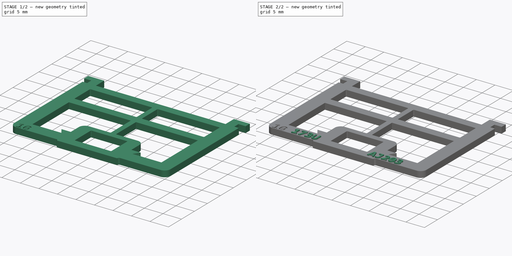
[diagram: build sequence overview — one tinted view per stage of 2, left to right]
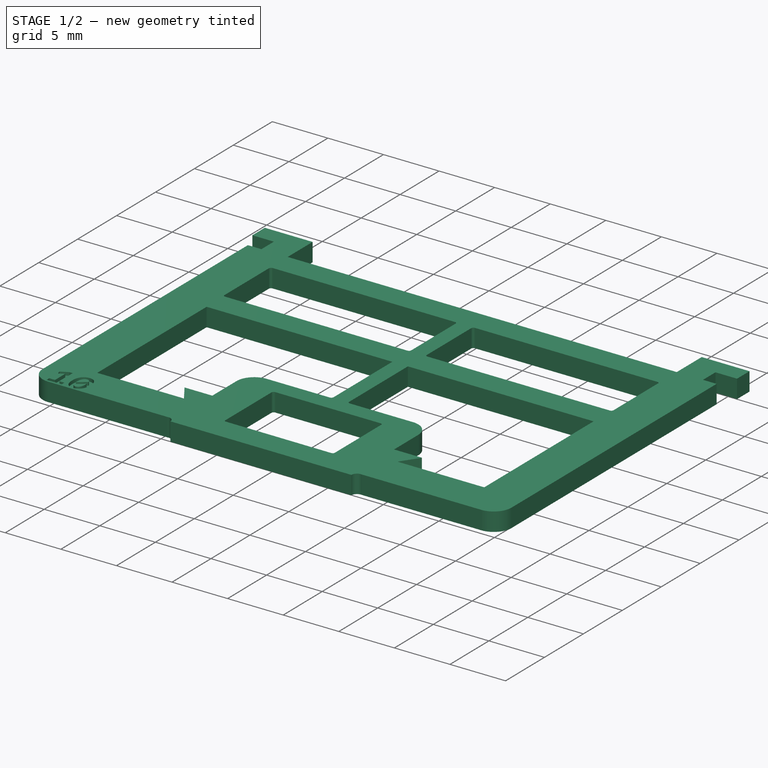
[diagram: stage 1 of 2 — iso view after this stage's code; geometry added in this stage tinted green]
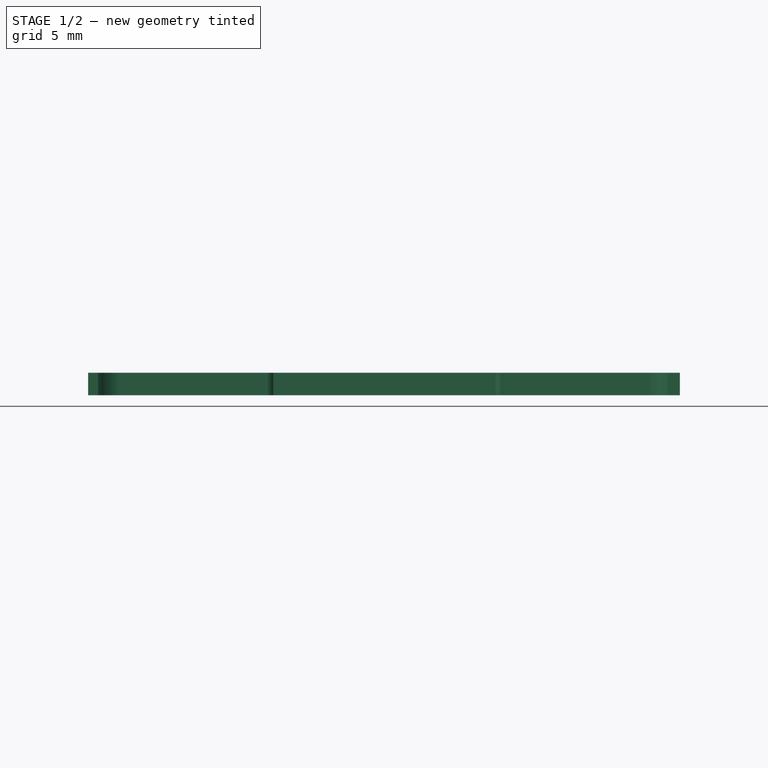
[diagram: stage 1 of 2 — front view after this stage's code; geometry added in this stage tinted green]
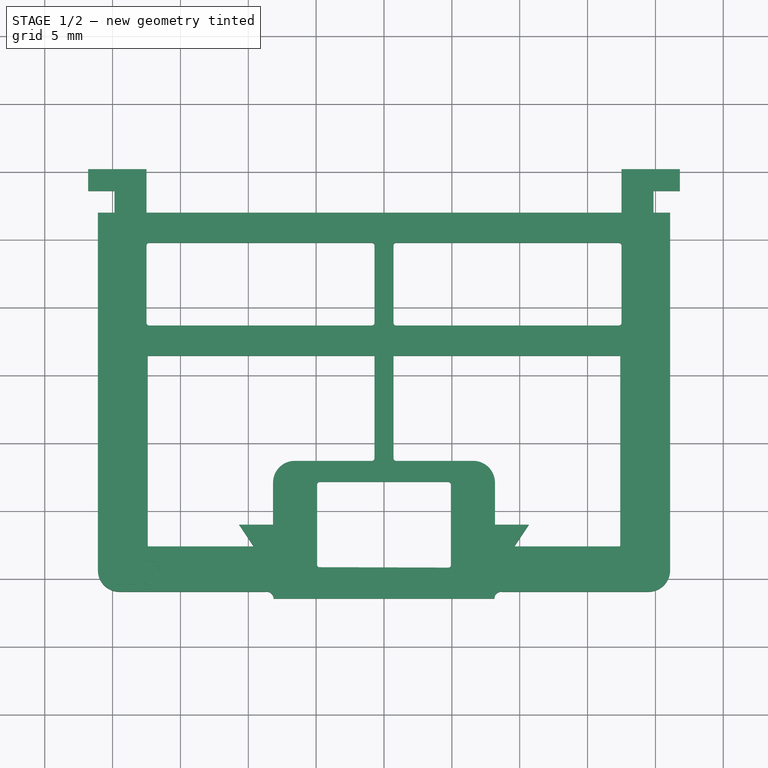
[diagram: stage 1 of 2 — top view after this stage's code; geometry added in this stage tinted green]
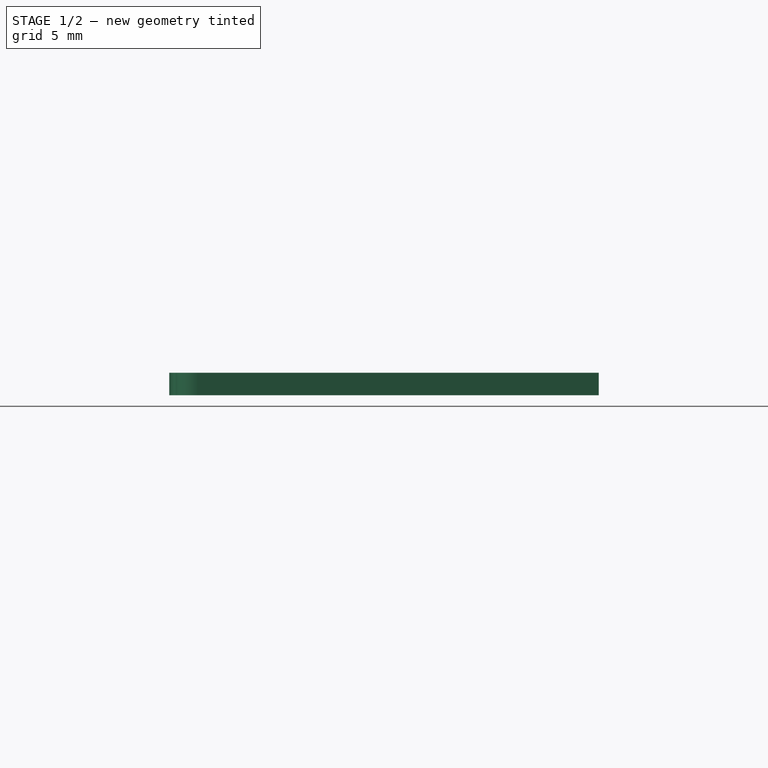
[diagram: stage 1 of 2 — right view after this stage's code; geometry added in this stage tinted green]
FCSTD DOCUMENT  (FreeCAD 0.21R33771 (Git))
Label: WE-P-19A150
License: All rights reserved
LicenseURL: http://en.wikipedia.org/wiki/All_rights_reserved
objects: Part::Part2DObjectPython×3, PartDesign::Pad×3, Sketcher::SketchObject×1, Spreadsheet::Sheet×1, PartDesign::Pocket×1, PartDesign::Body×1
note: 13 computed .brp shape members not serialized (recipe doc carries the construction recipe); baked Part::Feature solids carry a one-line shape summary decoded from their .brp

FEATURE [Sketcher::SketchObject] Sketch  label="P-19A150Sketch"
  FullyConstrained = false
  MapMode = 5
  Support = -> [XY_Plane]
  sketch-geometry (90):
    g0: LineSegment StartX=21.082 StartY=16.9923 StartZ=0 EndX=21.082 EndY=-9.38843 EndZ=0
    g1: ArcOfCircle CenterX=19.4825 CenterY=-9.34825 CenterZ=0 NormalX=0 NormalY=0 NormalZ=1 AngleXU=0 Radius=1.6 StartAngle=4.7375 EndAngle=6.25807
    g2: ArcOfCircle CenterX=-19.4825 CenterY=-9.34825 CenterZ=0 NormalX=0 NormalY=0 NormalZ=1 AngleXU=0 Radius=1.6 StartAngle=3.1667 EndAngle=4.68728
    g3: LineSegment StartX=-21.082 StartY=-9.38843 StartZ=0 EndX=-21.082 EndY=16.9923 EndZ=0
    g4: LineSegment StartX=-21.082 StartY=16.9923 StartZ=0 EndX=-19.86 EndY=16.9923 EndZ=0
    g5: LineSegment StartX=-19.86 StartY=16.9923 StartZ=0 EndX=-19.86 EndY=18.5923 EndZ=0
    g6: LineSegment StartX=-19.86 StartY=18.5923 StartZ=0 EndX=-21.8 EndY=18.5923 EndZ=0
    g7: LineSegment StartX=-21.8 StartY=18.5923 StartZ=0 EndX=-21.8 EndY=20.1923 EndZ=0
    g8: LineSegment StartX=21.082 StartY=16.9923 StartZ=0 EndX=19.86 EndY=16.9923 EndZ=0
    g9: LineSegment StartX=19.86 StartY=16.9923 StartZ=0 EndX=19.86 EndY=18.5923 EndZ=0
    g10: LineSegment StartX=19.86 StartY=18.5923 StartZ=0 EndX=21.8 EndY=18.5923 EndZ=0
    g11: LineSegment StartX=21.8 StartY=18.5923 StartZ=0 EndX=21.8 EndY=20.1923 EndZ=0
    g12: LineSegment StartX=-21.8 StartY=20.1923 StartZ=0 EndX=-17.5 EndY=20.1923 EndZ=0
    g13: LineSegment StartX=21.8 StartY=20.1923 StartZ=0 EndX=17.5 EndY=20.1923 EndZ=0
    g14: LineSegment StartX=17.5 StartY=20.1923 StartZ=0 EndX=-17.5 EndY=20.1923 EndZ=0
    g15: LineSegment StartX=17.5 StartY=20.1923 StartZ=0 EndX=17.5 EndY=16.9923 EndZ=0
    g16: ArcOfCircle CenterX=-17.3 CenterY=14.5723 CenterZ=0 NormalX=0 NormalY=0 NormalZ=1 AngleXU=0 Radius=0.2 StartAngle=1.5708 EndAngle=3.14159
    g17: LineSegment StartX=-17.3 StartY=14.7723 StartZ=0 EndX=-0.9 EndY=14.7723 EndZ=0
    g18: ArcOfCircle CenterX=-0.9 CenterY=14.5723 CenterZ=0 NormalX=0 NormalY=0 NormalZ=1 AngleXU=0 Radius=0.2 StartAngle=3.6e-15 EndAngle=1.5708
    g19: LineSegment StartX=-0.7 StartY=14.5723 StartZ=0 EndX=-0.7 EndY=8.87225 EndZ=0
    g20: ArcOfCircle CenterX=-0.9 CenterY=8.87225 CenterZ=0 NormalX=0 NormalY=0 NormalZ=1 AngleXU=0 Radius=0.2 StartAngle=4.71239 EndAngle=6.28319
    g21: LineSegment StartX=-0.9 StartY=8.67225 StartZ=0 EndX=-17.3 EndY=8.67225 EndZ=0
    g22: ArcOfCircle CenterX=-17.3 CenterY=8.87225 CenterZ=0 NormalX=0 NormalY=0 NormalZ=1 AngleXU=0 Radius=0.2 StartAngle=3.14159 EndAngle=4.71239
    g23: LineSegment StartX=-17.5 StartY=8.87225 StartZ=0 EndX=-17.5 EndY=14.5723 EndZ=0
    g24: ArcOfCircle CenterX=0.9 CenterY=14.5723 CenterZ=0 NormalX=0 NormalY=0 NormalZ=1 AngleXU=0 Radius=0.2 StartAngle=1.5708 EndAngle=3.14159
    g25: LineSegment StartX=0.9 StartY=14.7723 StartZ=0 EndX=17.3 EndY=14.7723 EndZ=0
    g26: ArcOfCircle CenterX=17.3 CenterY=14.5723 CenterZ=0 NormalX=0 NormalY=0 NormalZ=1 AngleXU=0 Radius=0.2 StartAngle=8e-16 EndAngle=1.5708
    g27: LineSegment StartX=17.5 StartY=14.5723 StartZ=0 EndX=17.5 EndY=8.87225 EndZ=0
    g28: ArcOfCircle CenterX=17.3 CenterY=8.87225 CenterZ=0 NormalX=0 NormalY=0 NormalZ=1 AngleXU=0 Radius=0.2 StartAngle=4.71239 EndAngle=6.28319
    g29: LineSegment StartX=17.3 StartY=8.67225 StartZ=0 EndX=0.9 EndY=8.67225 EndZ=0
    g30: ArcOfCircle CenterX=0.9 CenterY=8.87225 CenterZ=0 NormalX=0 NormalY=0 NormalZ=1 AngleXU=0 Radius=0.2 StartAngle=3.14159 EndAngle=4.71239
    g31: LineSegment StartX=0.7 StartY=8.87225 StartZ=0 EndX=0.7 EndY=14.5723 EndZ=0
    g32: ArcOfCircle CenterX=-4.73 CenterY=-3.04245 CenterZ=0 NormalX=0 NormalY=0 NormalZ=1 AngleXU=0 Radius=0.2 StartAngle=1.5708 EndAngle=3.14159
    g33: LineSegment StartX=-4.73 StartY=-2.84245 StartZ=0 EndX=4.73042 EndY=-2.84245 EndZ=0
    g34: ArcOfCircle CenterX=4.73042 CenterY=-3.04204 CenterZ=0 NormalX=0 NormalY=0 NormalZ=1 AngleXU=0 Radius=0.199583 StartAngle=-9e-16 EndAngle=1.5708
    g35: LineSegment StartX=4.93 StartY=-3.04204 StartZ=0 EndX=4.93 EndY=-8.9741 EndZ=0
    g36: ArcOfCircle CenterX=4.73106 CenterY=-8.9741 CenterZ=0 NormalX=0 NormalY=0 NormalZ=1 AngleXU=0 Radius=0.198942 StartAngle=4.70917 EndAngle=6.28319
    g37: LineSegment StartX=4.73042 StartY=-9.17304 StartZ=0 EndX=-4.76219 EndY=-9.14245 EndZ=0
    g38: ArcOfCircle CenterX=-4.76165 CenterY=-8.9741 CenterZ=0 NormalX=0 NormalY=0 NormalZ=1 AngleXU=0 Radius=0.168351 StartAngle=3.14159 EndAngle=4.70917
    g39: LineSegment StartX=-4.93 StartY=-8.9741 StartZ=0 EndX=-4.93 EndY=-3.04245 EndZ=0
    g40: LineSegment StartX=-8.14 StartY=-11.4477 StartZ=0 EndX=8.14 EndY=-11.4477 EndZ=0
    g41: LineSegment StartX=-19.5227 StartY=-10.9477 StartZ=0 EndX=-8.72268 EndY=-10.9477 EndZ=0
    g42: ArcOfCircle CenterX=-8.63995 CenterY=-11.4409 CenterZ=0 NormalX=0 NormalY=0 NormalZ=1 AngleXU=0 Radius=0.5 StartAngle=6.2694 EndAngle=8.0202
    g43: LineSegment StartX=19.5227 StartY=-10.9477 StartZ=0 EndX=8.72268 EndY=-10.9477 EndZ=0
    g44: LineSegment StartX=-17.5 StartY=16.9923 StartZ=0 EndX=-17.5 EndY=14.5723 EndZ=0
    g45: LineSegment StartX=-0.700015 StartY=6.44225 StartZ=0 EndX=-17.4046 EndY=6.44225 EndZ=0
    g46: ArcOfCircle CenterX=-17.3755 CenterY=-7.57852 CenterZ=0 NormalX=0 NormalY=0 NormalZ=1 AngleXU=0 Radius=0.02923 StartAngle=3.06752 EndAngle=4.71357
    g47: LineSegment StartX=-17.4046 StartY=-7.57636 StartZ=0 EndX=-17.4046 EndY=6.44225 EndZ=0
    g48: LineSegment StartX=-0.700015 StartY=6.44225 StartZ=0 EndX=-0.700015 EndY=-1.10696 EndZ=0
    g49: ArcOfCircle CenterX=-0.900015 CenterY=-1.10696 CenterZ=0 NormalX=0 NormalY=0 NormalZ=1 AngleXU=0 Radius=0.2 StartAngle=4.83779 EndAngle=6.28319
    g50: LineSegment StartX=-0.875 StartY=-1.30539 StartZ=0 EndX=-6.575 EndY=-1.30539 EndZ=0
    g51: LineSegment StartX=-8.175 StartY=-6.00775 StartZ=0 EndX=-8.175 EndY=-2.90539 EndZ=0
    g52: ArcOfCircle CenterX=-6.575 CenterY=-2.90539 CenterZ=0 NormalX=0 NormalY=0 NormalZ=1 AngleXU=0 Radius=1.6 StartAngle=1.5708 EndAngle=3.14159
    g53: LineSegment StartX=-17.3754 StartY=-7.60775 StartZ=0 EndX=-9.60544 EndY=-7.60775 EndZ=0
    g54: LineSegment StartX=-9.60544 StartY=-7.60775 StartZ=0 EndX=-10.675 EndY=-6.00775 EndZ=0
    g55: LineSegment StartX=-10.675 StartY=-6.00775 StartZ=0 EndX=-8.175 EndY=-6.00775 EndZ=0
    g56: LineSegment StartX=17.4048 StartY=6.44225 StartZ=0 EndX=17.4048 EndY=-7.45292 EndZ=0
    g57: ArcOfCircle CenterX=17.2095 CenterY=-7.4961 CenterZ=0 NormalX=0 NormalY=0 NormalZ=1 AngleXU=0 Radius=0.2 StartAngle=5.69089 EndAngle=6.50078
    g58: ArcOfCircle CenterX=0.900015 CenterY=-1.10696 CenterZ=0 NormalX=0 NormalY=0 NormalZ=1 AngleXU=0 Radius=0.2 StartAngle=3.14159 EndAngle=4.58699
    g59: LineSegment StartX=0.700015 StartY=-1.10696 StartZ=0 EndX=0.700015 EndY=6.44225 EndZ=0
    g60: LineSegment StartX=17.3754 StartY=-7.60775 StartZ=0 EndX=9.60544 EndY=-7.60775 EndZ=0
    g61: LineSegment StartX=0.875 StartY=-1.30539 StartZ=0 EndX=6.575 EndY=-1.30539 EndZ=0
    g62: LineSegment StartX=6.575 StartY=-1.30539 StartZ=0 EndX=8.175 EndY=-1.30539 EndZ=0
    g63: LineSegment StartX=8.175 StartY=-1.30539 StartZ=0 EndX=8.175 EndY=-2.90539 EndZ=0
    g64: ArcOfCircle CenterX=6.575 CenterY=-2.90539 CenterZ=0 NormalX=0 NormalY=0 NormalZ=1 AngleXU=0 Radius=1.6 StartAngle=0 EndAngle=1.5708
    g65: LineSegment StartX=8.175 StartY=-2.90539 StartZ=0 EndX=8.175 EndY=-6.00775 EndZ=0
    g66: LineSegment StartX=8.175 StartY=-6.00775 StartZ=0 EndX=10.675 EndY=-6.00775 EndZ=0
    g67: LineSegment StartX=10.675 StartY=-6.00775 StartZ=0 EndX=9.60544 EndY=-7.60775 EndZ=0
    g68: LineSegment StartX=-0.700015 StartY=-1.10696 StartZ=0 EndX=0.700015 EndY=-1.10696 EndZ=0
    g69: LineSegment StartX=-6.575 StartY=-1.30539 StartZ=0 EndX=-8.175 EndY=-1.30539 EndZ=0
    g70: LineSegment StartX=-8.175 StartY=-2.90539 StartZ=0 EndX=-8.175 EndY=-1.30539 EndZ=0
    g71: LineSegment StartX=-0.700015 StartY=6.44225 StartZ=0 EndX=0.700015 EndY=6.44225 EndZ=0
    g72: LineSegment StartX=-0.7 StartY=8.87225 StartZ=0 EndX=0.7 EndY=8.87225 EndZ=0
    g73: LineSegment StartX=-17.5 StartY=20.1923 StartZ=0 EndX=-17.5 EndY=16.9923 EndZ=0
    g74: LineSegment StartX=-17.5 StartY=16.9923 StartZ=0 EndX=17.5 EndY=16.9923 EndZ=0
    g75: LineSegment StartX=0.700015 StartY=6.44225 StartZ=0 EndX=17.4048 EndY=6.44225 EndZ=0
    g76: LineSegment StartX=-19.86 StartY=16.9923 StartZ=0 EndX=-17.5 EndY=16.9923 EndZ=0
    g77: LineSegment StartX=17.5 StartY=16.9923 StartZ=0 EndX=19.86 EndY=16.9923 EndZ=0
    g78: LineSegment StartX=-19.86 StartY=18.5923 StartZ=0 EndX=19.86 EndY=18.5923 EndZ=0
    g79: LineSegment StartX=17.5 StartY=16.9923 StartZ=0 EndX=17.5 EndY=14.5723 EndZ=0
    g80: LineSegment StartX=-9.60544 StartY=-7.60775 StartZ=0 EndX=9.89456 EndY=-7.60775 EndZ=0
    g81: LineSegment StartX=-8.175 StartY=-6.00775 StartZ=0 EndX=8.175 EndY=-6.00775 EndZ=0
    g82: LineSegment StartX=-19.5227 StartY=-10.9477 StartZ=0 EndX=-21.082 EndY=-10.9477 EndZ=0
    g83: LineSegment StartX=-21.082 StartY=-9.38843 StartZ=0 EndX=-21.082 EndY=-10.9477 EndZ=0
    g84: LineSegment StartX=19.5227 StartY=-10.9477 StartZ=0 EndX=21.082 EndY=-10.9477 EndZ=0
    g85: LineSegment StartX=21.082 StartY=-9.38843 StartZ=0 EndX=21.082 EndY=-10.9477 EndZ=0
    g86: LineSegment StartX=-8.72268 StartY=-10.9477 StartZ=0 EndX=8.72268 EndY=-10.9477 EndZ=0
    g87: ArcOfCircle CenterX=8.63995 CenterY=-11.4409 CenterZ=0 NormalX=0 NormalY=0 NormalZ=1 AngleXU=0 Radius=0.5 StartAngle=1.40458 EndAngle=3.15538
    g88: LineSegment StartX=0.875 StartY=-1.30539 StartZ=0 EndX=0.875 EndY=-1.65252 EndZ=0
    g89: LineSegment StartX=-0.9 StartY=14.7723 StartZ=0 EndX=0.9 EndY=14.7723 EndZ=0
  constraints (227):
    c: Vertical(g3)
    c: Coincident(g4,g3)
    c: Horizontal(g4)
    c: Coincident(g5,g4)
    c: Vertical(g5)
    c: Coincident(g6,g5)
    c: Horizontal(g6)
    c: DistanceX(g6,g6) = 1.94
    c: Coincident(g7,g6)
    c: Vertical(g7)
    c: DistanceY(g7,g7) = 1.6
    c: DistanceX(g2,g0) = 42.164
    c: Coincident(g8,g0)
    c: Horizontal(g8)
    c: Coincident(g9,g8)
    c: Vertical(g9)
    c: Equal(g3,g0)
    c: Coincident(g10,g9)
    c: Horizontal(g10)
    c: Equal(g6,g10)
    c: Coincident(g11,g10)
    c: Vertical(g11)
    c: Coincident(g12,g7)
    c: Horizontal(g12)
    c: DistanceX(g12,g12) = 4.3
    c: Coincident(g13,g11)
    c: Horizontal(g13)
    c: Coincident(g14,g13)
    c: Coincident(g14,g12)
    c: Coincident(g15,g13)
    c: Vertical(g15)
    c: Tangent(g16,g17) = 1.5708
    c: Tangent(g17,g18) = 1.5708
    c: Tangent(g18,g19) = 1.5708
    c: Tangent(g19,g20) = 1.5708
    c: Tangent(g20,g21) = 1.5708
    c: Tangent(g21,g22) = 1.5708
    c: Tangent(g22,g23) = 1.5708
    c: Tangent(g23,g16) = 1.5708
    c: Horizontal(g17)
    c: Horizontal(g21)
    c: Vertical(g19)
    c: Vertical(g23)
    c: Equal(g16,g18)
    c: Equal(g18,g20)
    c: Equal(g20,g22)
    c: DistanceX(g16,g18) = 16.8
    c: Radius(g16) = 0.2
    c: Tangent(g24,g25) = 1.5708
    c: Tangent(g25,g26) = 1.5708
    c: Tangent(g26,g27) = 1.5708
    c: Tangent(g27,g28) = 1.5708
    c: Tangent(g28,g29) = 1.5708
    c: Tangent(g29,g30) = 1.5708
    c: Tangent(g30,g31) = 1.5708
    c: Tangent(g31,g24) = 1.5708
    c: Horizontal(g25)
    c: Horizontal(g29)
    c: Vertical(g27)
    c: Equal(g24,g26)
    c: Equal(g26,g28)
    c: Equal(g28,g30)
    c: Equal(g16,g24)
    c: DistanceX(g24,g26) = 16.8
    c: Tangent(g32,g33) = 1.5708
    c: Tangent(g33,g34) = 1.5708
    c: Tangent(g34,g35) = 1.5708
    c: Tangent(g35,g36) = 1.5708
    c: Tangent(g36,g37) = 1.5708
    c: Tangent(g37,g38) = 1.5708
    c: Tangent(g38,g39) = 1.5708
    c: Tangent(g39,g32) = 1.5708
    c: Horizontal(g33)
    c: Vertical(g35)
    c: Vertical(g39)
    c: DistanceX(g32,g34) = 9.86
    c: Equal(g32,g16)
    c: Symmetric(g38,g35,g-2)
    c: Symmetric(g40,g40,g-2)
    c: Coincident(g42,g40)
    c: Coincident(g42,g41)
    c: Radius(g42) = 0.5
    c: Coincident(g43,g1)
    c: Horizontal(g43)
    c: Equal(g41,g43)
    c: Coincident(g44,g16)
    c: Vertical(g44)
    c: Vertical(g47)
    c: Tangent(g48,g49) = 1.5708
    c: Vertical(g48)
    c: Vertical(g51)
    c: Coincident(g52,g51)
    c: Coincident(g52,g50)
    c: Radius(g52) = 1.6
    c: Coincident(g54,g53)
    c: Coincident(g55,g54)
    c: Horizontal(g55)
    c: Coincident(g51,g55)
    c: DistanceX(g55,g55) = 2.5
    c: Tangent(g58,g59) = 1.5708
    c: Vertical(g56)
    c: Vertical(g59)
    c: Equal(g57,g58)
    c: Equal(g48,g59)
    c: Coincident(g61,g58)
    c: Horizontal(g61)
    c: Coincident(g62,g61)
    c: Horizontal(g62)
    c: Coincident(g63,g62)
    c: Vertical(g63)
    c: Coincident(g64,g63)
    c: Coincident(g64,g61)
    c: Coincident(g65,g64)
    c: Vertical(g65)
    c: Coincident(g66,g65)
    c: Horizontal(g66)
    c: DistanceX(g66,g66) = 2.5
    c: Coincident(g67,g66)
    c: Coincident(g67,g60)
    c: Coincident(g68,g48)
    c: Coincident(g68,g59)
    c: Coincident(g69,g50)
    c: Horizontal(g69)
    c: Coincident(g70,g51)
    c: Vertical(g70)
    c: Coincident(g69,g70)
    c: DistanceY(g70,g70) = 1.6
    c: Coincident(g72,g19)
    c: Coincident(g72,g30)
    c: Equal(g49,g58)
    c: Vertical(g73)
    c: Coincident(g74,g73)
    c: Coincident(g74,g15)
    c: Horizontal(g74)
    c: Coincident(g44,g73)
    c: Coincident(g76,g4)
    c: Coincident(g76,g73)
    c: Coincident(g77,g15)
    c: Coincident(g77,g8)
    c: Coincident(g78,g5)
    c: Coincident(g78,g9)
    c: Radius(g46) = 0.02923
    c: DistanceX(g53,g53) = 7.77
    c: DistanceX(g60,g60) = 7.77
    c: DistanceY(g53,g54) = 1.6
    c: Coincident(g79,g15)
    c: DistanceX(g74,g74) = 35
    c: Coincident(g26,g79)
    c: Coincident(g81,g51)
    c: Coincident(g81,g65)
    c: Symmetric(g30,g19,g-2)
    c: Coincident(g3,g2)
    c: Vertical(g83)
    c: Coincident(g84,g85)
    c: Horizontal(g84)
    c: Coincident(g84,g1)
    c: Coincident(g85,g0)
    c: Coincident(g1,g0)
    c: Equal(g1,g2)
    c: Coincident(g41,g2)
    c: Coincident(g83,g2)
    c: Coincident(g82,g83)
    c: Coincident(g2,g82)
    c: Horizontal(g41)
    c: Radius(g2) = 1.6
    c: Vertical(g0)
    c: Coincident(g86,g41)
    c: Coincident(g86,g43)
    c: DistanceY(g40,g41) = 0.5
    c: DistanceY(g41,g53) = 3.34
    c: Coincident(g80,g53)
    c: Horizontal(g80)
    c: Horizontal(g53)
    c: Horizontal(g60)
    c: Coincident(g46,g53)
    c: Coincident(g47,g46)
    c: Horizontal(g45)
    c: Coincident(g57,g60)
    c: Coincident(g56,g57)
    c: Coincident(g45,g47)
    c: Coincident(g87,g40)
    c: Coincident(g87,g43)
    c: Equal(g87,g42)
    c: Vertical(g31)
    c: Coincident(g45,g48)
    c: Coincident(g75,g59)
    c: Horizontal(g75)
    c: Coincident(g56,g75)
    c: DistanceY(g45,g21) = 2.23
    c: Horizontal(g76)
    c: Coincident(g50,g49)
    c: Horizontal(g50)
    c: DistanceY(g21,g16) = 6.1
    c: Coincident(g73,g12)
    c: DistanceY(g5,g5) = 1.6
    c: DistanceX(g81,g81) = 16.35
    c: DistanceX(g80,g80) = 19.5
    c: DistanceX(g41,g41) = 10.8
    c: Equal(g85,g84)
    c: Equal(g84,g82)
    c: Equal(g82,g83)
    c: DistanceX(g40,g40) = 16.28
    c: Coincident(g45,g71)
    c: Coincident(g71,g59)
    c: Symmetric(g43,g41,g-2)
    c: Symmetric(g53,g60,g-2)
    c: Symmetric(g51,g65,g-2)
    c: Symmetric(g48,g58,g-2)
    c: Radius(g49) = 0.2
    c: Coincident(g88,g58)
    c: DistanceX(g50,g50) = 5.7
    c: Equal(g62,g63)
    c: Equal(g64,g52)
    c: Equal(g70,g69)
    c: Equal(g69,g62)
    c: Equal(g50,g61)
    c: DistanceY(g37,g32) = 6.3
    c: Symmetric(g33,g36,g81)
    c: Symmetric(g12,g13,g-2)
    c: Symmetric(g5,g9,g-2)
    c: Symmetric(g2,g0,g-2)
    c: Coincident(g89,g17)
    c: Coincident(g89,g24)
    c: Horizontal(g89)
    c: DistanceY(g45,g73) = 10.55
    c: DistanceY(g46,g73) = 24.6
    c: DistanceY(g47,g47) = 14.0186
FEATURE [Part::Part2DObjectPython] ShapeString  label="RelayDatecodeShapeString"  # Draft 2D object (typed FeaturePython)
  FontFile = <path>
  MakeFace = true
  Placement = pos=(-20,-10.75,1.66) rot=(0,0,1;0rad)
  Size = 2.5
  String =    173U
  Tracking = 0
  expr: .Placement.Base.z = Spreadsheet.CardThickness
  expr: String = <<%7s>> % Spreadsheet.RelayDatecode
FEATURE [Part::Part2DObjectPython] ShapeString001  label="RelayTypeShapeString"  # Draft 2D object (typed FeaturePython)
  FontFile = <path>
  MakeFace = true
  Placement = pos=(6,-10.75,1.66) rot=(0,0,1;0rad)
  Size = 2.5
  String = AJ203
  Tracking = 0
  expr: .Placement.Base.z = Spreadsheet.CardThickness
  expr: String = Spreadsheet.RelayType
FEATURE [Part::Part2DObjectPython] ShapeString002  label="CardNo"  # Draft 2D object (typed FeaturePython)
  FontFile = <path>
  MakeFace = true
  Placement = pos=(-20,-10.75,1.66) rot=(0,0,1;0rad)
  Size = 2.5
  String = 10
  Tracking = 0
  expr: .Placement.Base.z = Spreadsheet.CardThickness
  expr: String = Spreadsheet.CardNo
FEATURE [PartDesign::Pad] Pad  label="CardPad"
  Direction = (0,0,1)
  Length = 1.66
  Length2 = 10
  Profile = -> Sketch
  ReferenceAxis = -> Sketch [N_Axis]
  Type = 0
  expr: Length = Spreadsheet.CardThickness
FEATURE [Spreadsheet::Sheet] Spreadsheet
  cells = A1='WE-P-19A150 Configuration; A2='Parameter; B2='Value; C2='Description; D2='How to use this model; A3='General Parameters; D3='1. Select Card Number.  Always 10; A4='Card Number; B4(CardNo)=10; C4='Card profile index (10 for 24 make contacts); D4='2. Enter relay type text, for example: AJ203; A5='Relay Type; B5(RelayType)='AJ203; C5='Relay type text, for example: AG-26; D5='3. Enter the datecode text.  If this text begins with a number, precede with a single quote (').; A6='Datecode; B6(RelayDatecode)='173U; C6='Date Code, cannot be empty.  Precede with ' if beginning with a numeral; D6='4. View the model, and select the body (double click on the card rendering with the mouse) and export as an STL mesh file.; D7='5. Print on your 3D-printer.  Recommend using PETG or ABS filament for strength.  PLA may work for light-duty use.; A8='Advanced Parameters; A9='TextHeight; B9(TextHeight)=0.3; A10='CardNoTextDepth; B10(TextDepth)=0.3; A12='CardThickness; B12(CardThickness)==1.66 mm; A13='B Cutout; B13(B_Cutout)==0.66 mm; A14='EB Cutout; B14(EB_Cutout)==0.33 mm; A15='PB Cutout; B15==0 mm; A17='M Cutout; B17==0 mm; A18='EM Cutout; B18(EM_Cutout)==0.33 mm; A19='PM Cutout; B19(PM_Cutout)==0.66 mm
FEATURE [PartDesign::Pocket] Pocket  label="CardNoPocket"
  BaseFeature = -> Pad
  Direction = (0,0,-1)
  Length = 0.3
  Length2 = 5
  Profile = -> ShapeString002
  ReferenceAxis = -> ShapeString002 [N_Axis]
  Type = 0
  expr: Length = Spreadsheet.TextDepth
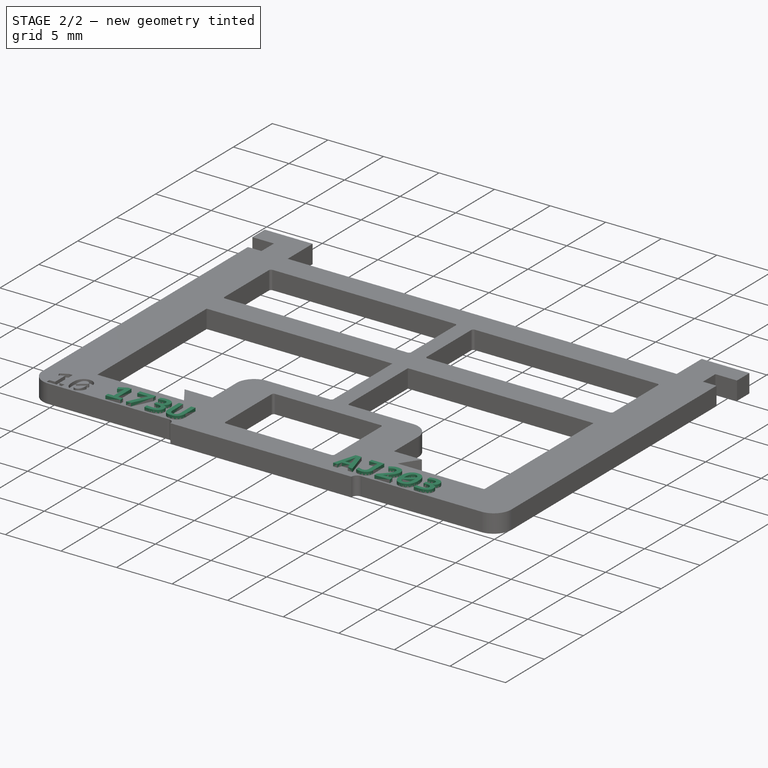
[diagram: stage 2 of 2 — iso view after this stage's code; geometry added in this stage tinted green]
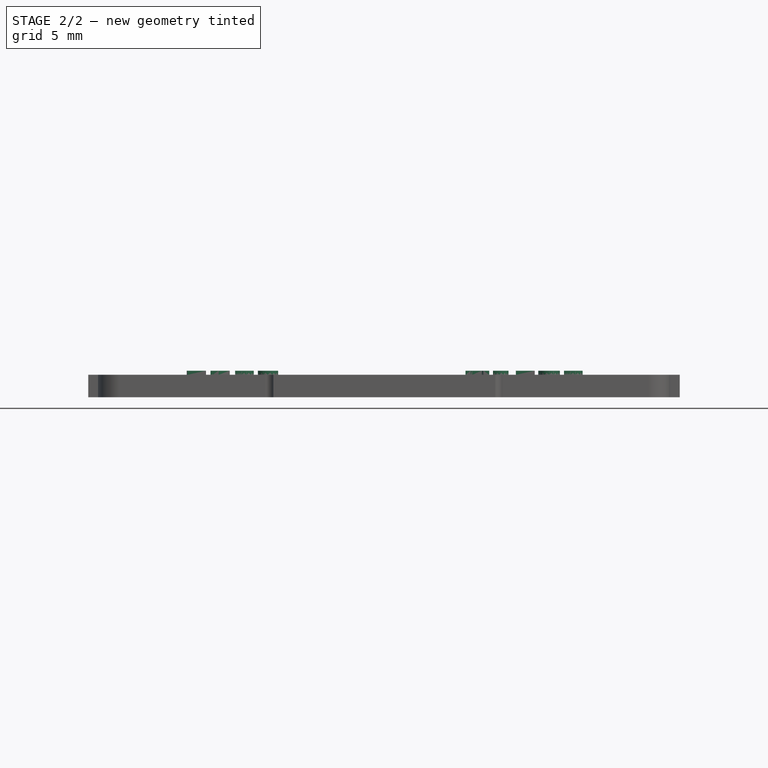
[diagram: stage 2 of 2 — front view after this stage's code; geometry added in this stage tinted green]
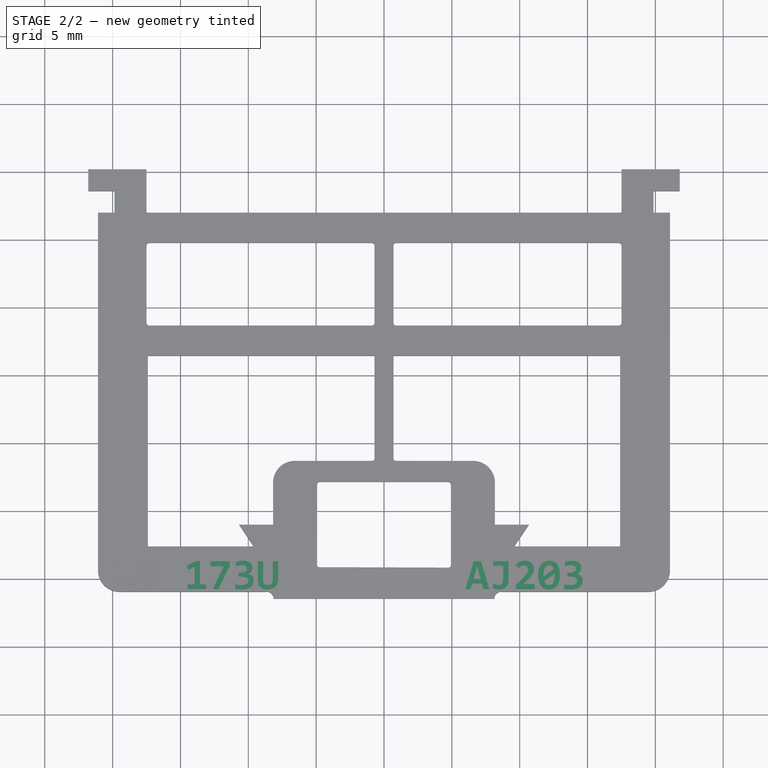
[diagram: stage 2 of 2 — top view after this stage's code; geometry added in this stage tinted green]
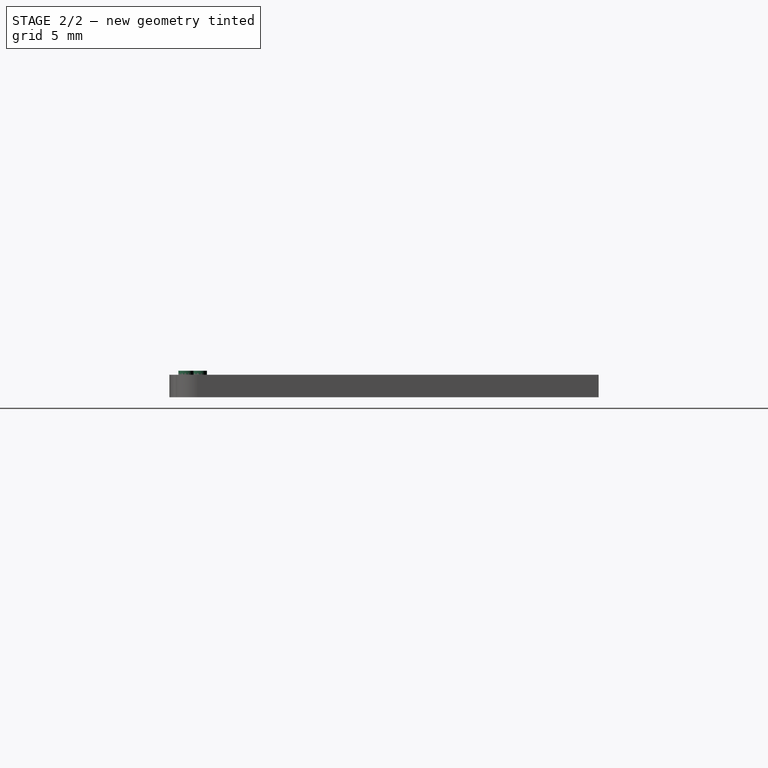
[diagram: stage 2 of 2 — right view after this stage's code; geometry added in this stage tinted green]
FEATURE [PartDesign::Pad] Pad001  label="RelayTypePad"
  BaseFeature = -> Pocket
  Direction = (0,0,1)
  Length = 0.3
  Length2 = 10
  Profile = -> ShapeString001
  ReferenceAxis = -> ShapeString001 [N_Axis]
  Type = 0
  expr: Length = Spreadsheet.TextHeight
FEATURE [PartDesign::Pad] Pad002  label="RelayDatecodePad"
  BaseFeature = -> Pad001
  Direction = (0,0,1)
  Length = 0.3
  Length2 = 10
  Profile = -> ShapeString
  ReferenceAxis = -> ShapeString [N_Axis]
  Type = 0
  expr: Length = Spreadsheet.TextHeight
FEATURE [PartDesign::Body] Body
  Group = -> [Pad,Sketch,ShapeString001,ShapeString,Pocket,Pad001,Pad002,ShapeString002]
  Origin = -> Origin
  Tip = -> Pad002
note: 3 file-system paths scrubbed to <path> (originals preserved in the JSON sidecar)
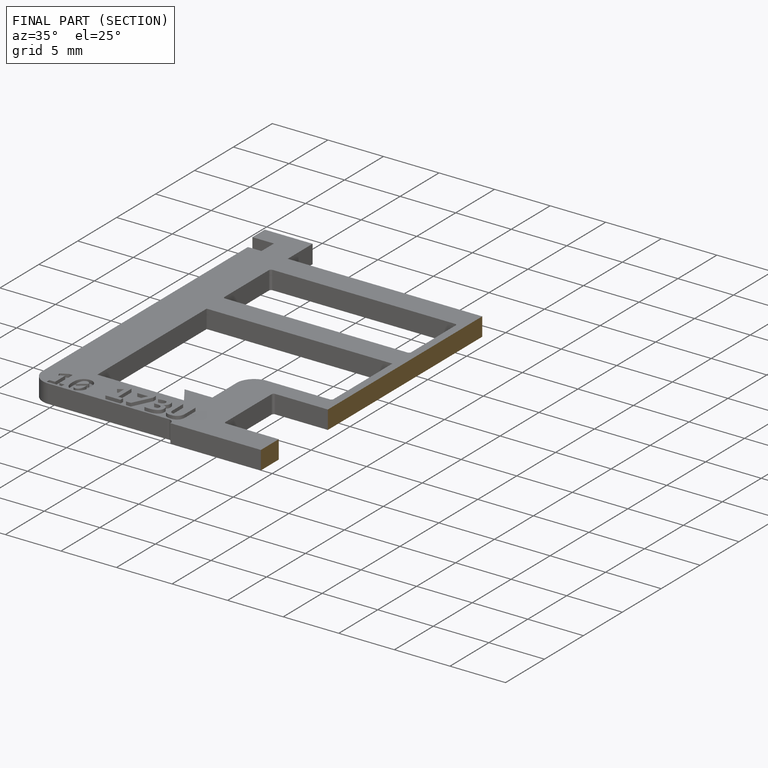
[diagram: finished part — half-section view (interior)]
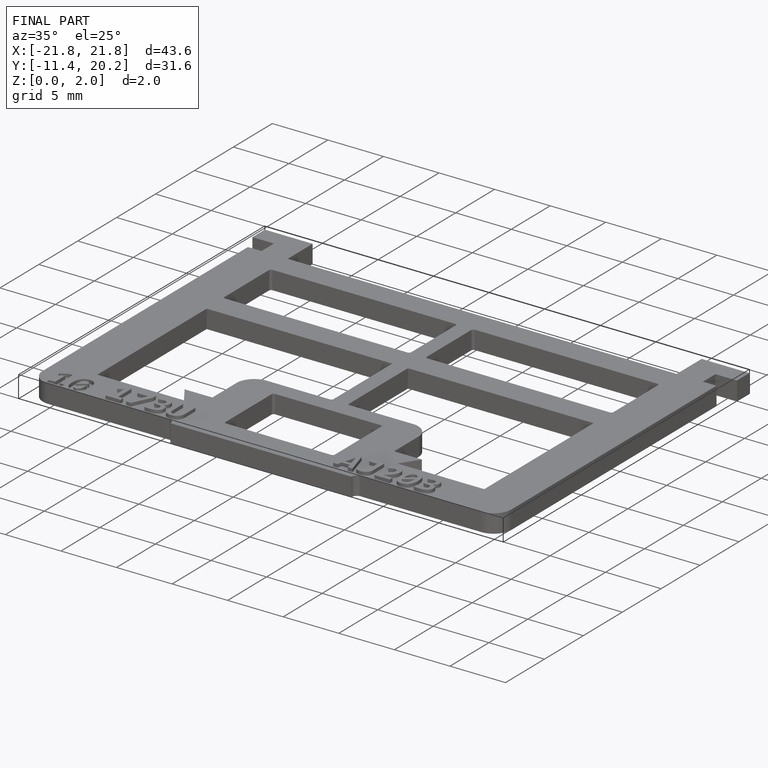
[diagram: finished part — iso view with bounding-box wireframe]
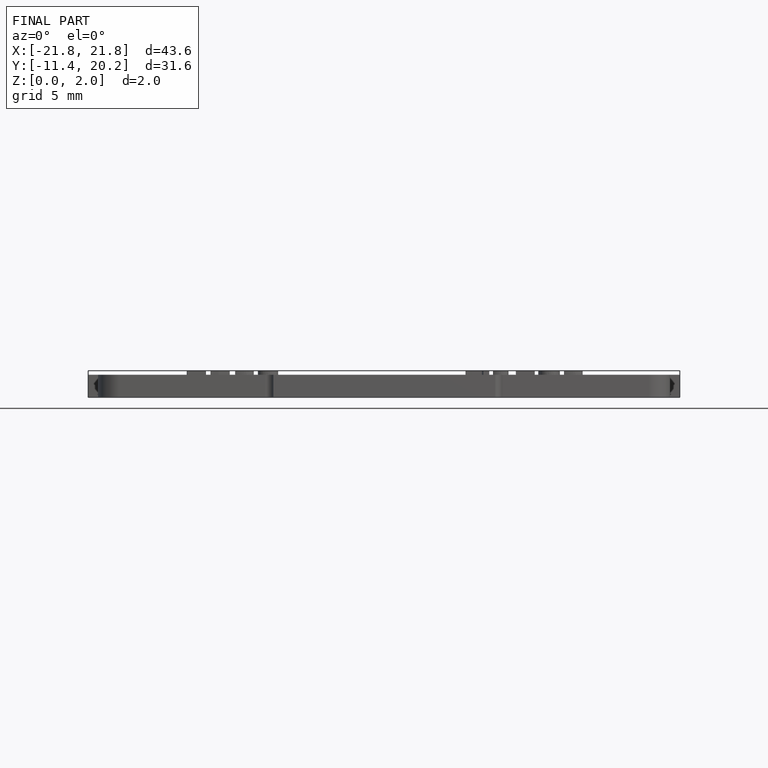
[diagram: finished part — front view with bounding-box wireframe]
